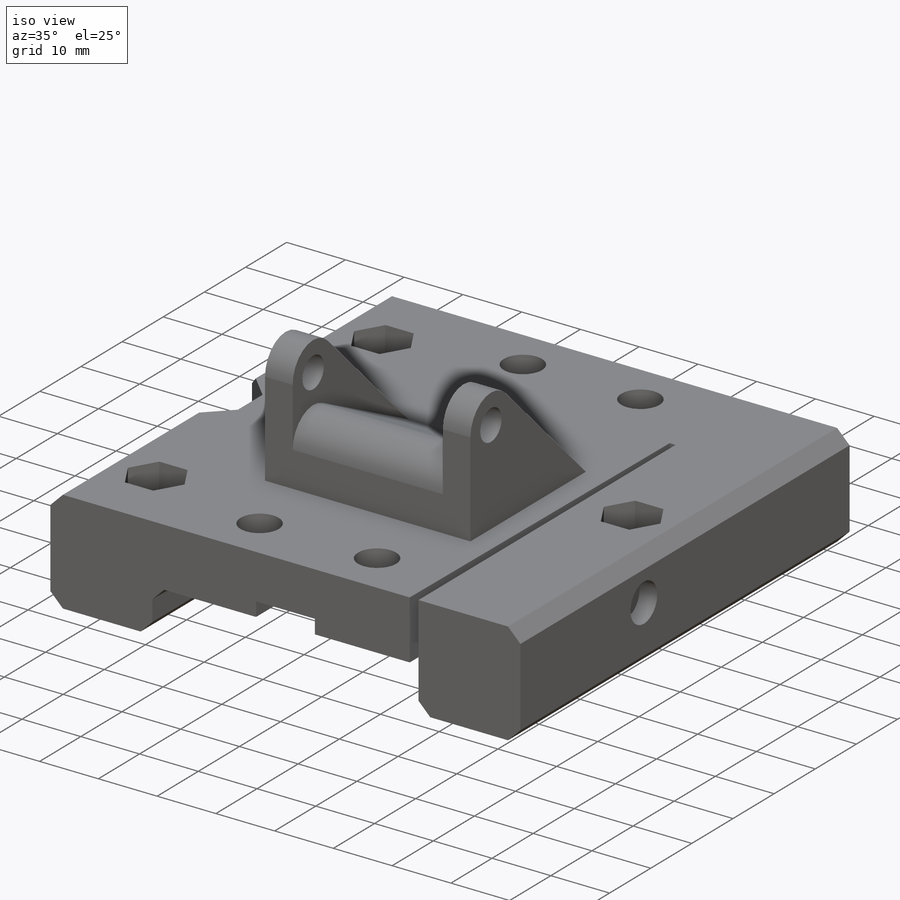
[diagram: iso view]
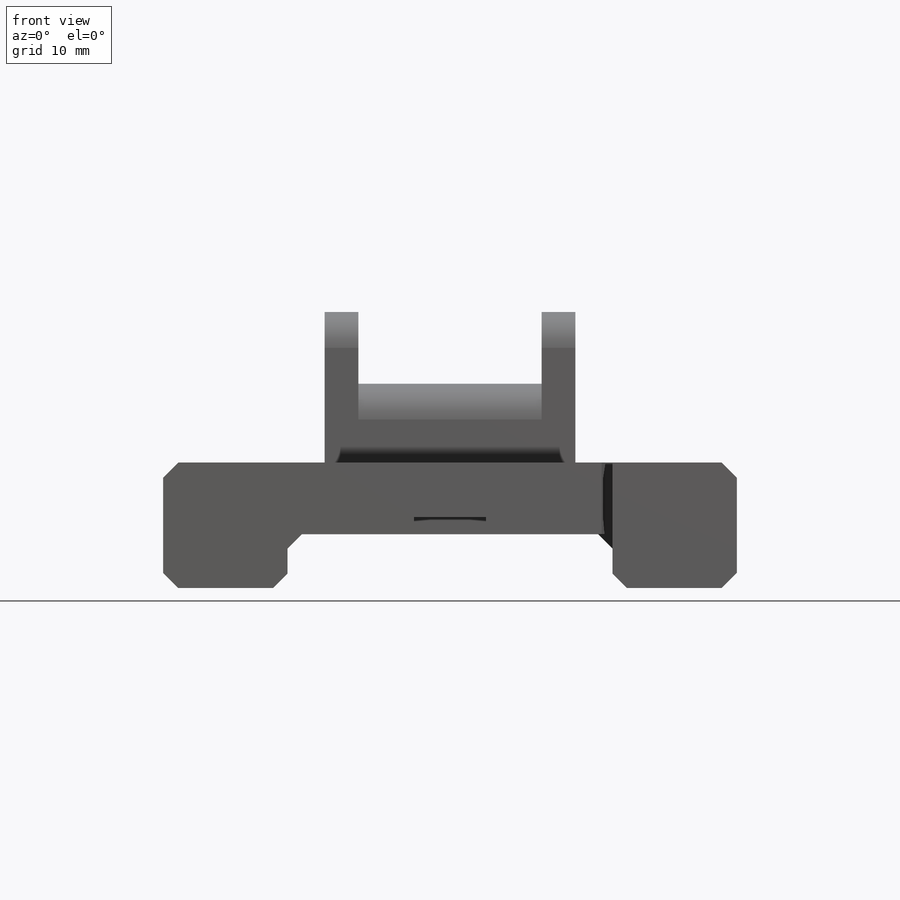
[diagram: front view]
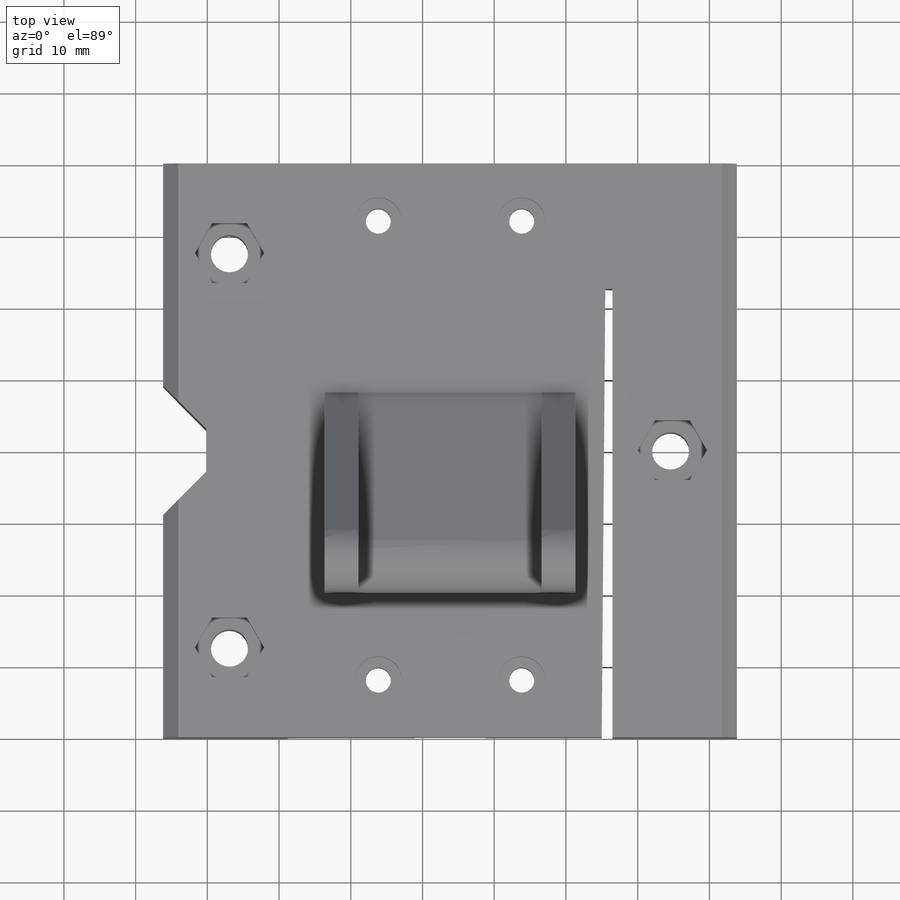
[diagram: top view]
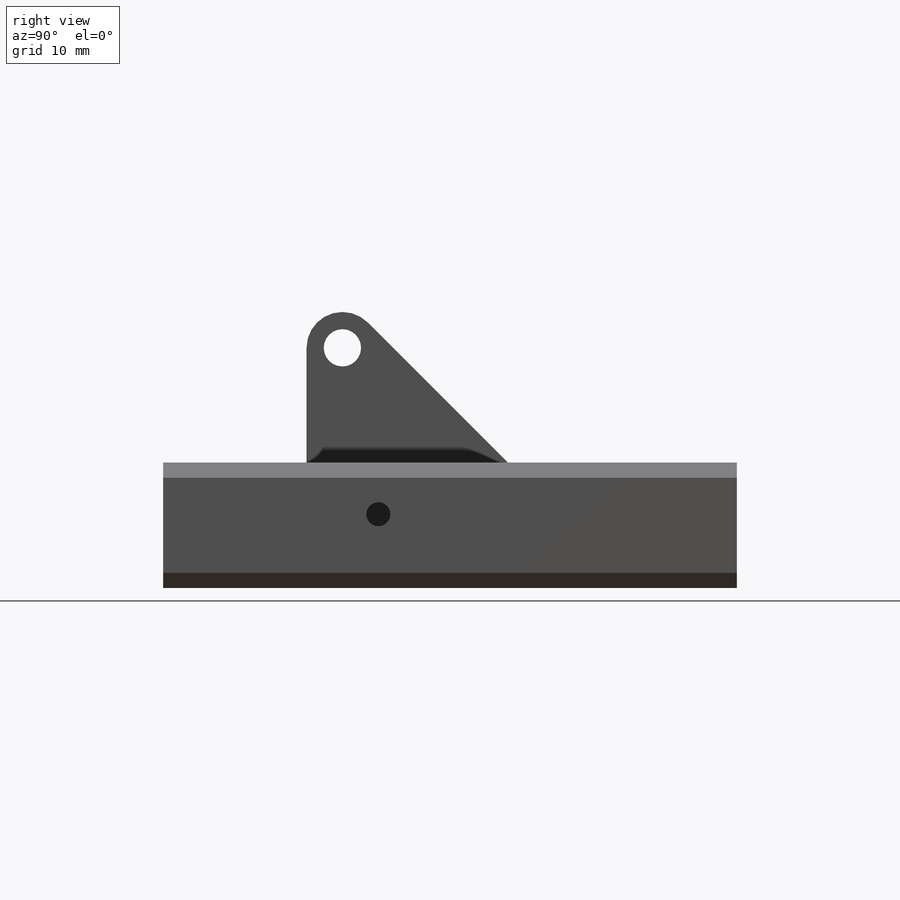
[diagram: right view]
SOLIDWORKS PART (.sldprt)
format: sldprt  version: not decoded by parser v0  size: 979,456 bytes
history: native  units: mm
features: sketch x16, cut_extrude x12, extrude x4, chamfer x2, material x1 (+16 scaffold rows collapsed)
feature tree (51):
  scaffold x16  (default folders/planes/origin — collapsed)
  material  "Material <not specified>"
  sketch  "Sketch1"  dims[c1.D1=17.3515mm c1.D3=2.0mm c1.D4=2.0mm c1.D5=2.0mm c2.D1=17.5mm c2.D6=2.0mm c2.D2=17.5mm]
  extrude  "Boss-Extrude1"  Depth=80mm
  sketch  "Sketch2"  dims[c1.D1=5.2mm c1.D2=5.2mm c1.D4=5.2mm c2.D2=30.75mm c2.D3=31.324mm c3.D3=30.75mm]
  cut_extrude  "Cut-Extrude1"  [1 undecoded]
  sketch  "Sketch3"  dims[c1.D1=1.0mm c1.D2=25.0mm c2.D1=62.5mm c2.D2=1.0mm c3.D1=1.0mm c3.D2=~0.999936mm c4.D1=1.5mm c4.D2=1.0mm c4.D3=0.5mm c5.D2=0.5mm]
  sketch  "Sketch5"  dims[c1.D1=6.5mm c1.D2=5.0mm c1.D3=7.231mm c2.D2=30.0mm c2.D3=5.114mm]
  sketch  "Sketch7"  dims[c1.D1=5.75mm c1.D2=1.9mm c1.D3=5.0mm c1.D4=4.0mm c2.D3=30.0mm c2.D4=22.3515mm c2.D5=22.352mm]
  cut_extrude  "Cut-Extrude5"  Depth=5.75mm
  sketch  "Sketch9"  dims[c1.D1=12.0mm c1.D2=10.0mm c2.D1=20.0mm]
  cut_extrude  "Cut-Extrude6"  Depth=2.4mm
  sketch  "Sketch11"  dims[c1.D1=3.5mm c1.D2=6.0mm c1.D3=10.0mm c1.D4=~10.995318mm c1.D5=6.0mm c1.D6=6.0mm c2.D5=6.0mm c2.D6=14.6485mm c2.D2=8.0mm c2.D3=~7.982222deg]
  cut_extrude  "Cut-Extrude7"  [1 undecoded]
  sketch  "Sketch13"  dims[D1=6.5mm]
  cut_extrude  "Cut-Extrude8"  Depth=3mm
  sketch  "Sketch15"  dims[c1.D2=10.0mm c1.D3=5.2mm c1.D1=5.0mm c2.D2=10.0mm c2.D1=60.0mm c2.D3=135.0deg c3.D1=60.0mm c3.D4=15.99mm c3.D5=~30.520968mm c4.D5=45.0deg c4.D1=25.0mm c5.D5=~27.613275mm c6.D5=45.0deg c6.D1=18.4499mm]
  extrude  "Boss-Extrude7"  [1 undecoded]
  sketch  "Sketch19"  dims[D1=8.35mm]
  cut_extrude  "Cut-Extrude12"  Depth=5mm
  sketch  "Sketch16"  dims[c1.D2=4.7mm c1.D3=25.561mm c1.D1=16.1511mm c2.D2=16.1511mm]
  cut_extrude  "Cut-Extrude22"  Depth=3mm
  sketch  "Sketch30"  dims[c1.D1=3.35mm c1.D3=5.85mm c1.D2=5.114mm c2.D3=5.0mm]
  cut_extrude  "Cut-Extrude23"  Depth=25mm
  sketch  "Sketch31"  dims[c1.D1=~2.750002mm c2.D1=45.0deg c3.D1=~2.750002mm c4.D1=45.0deg c5.D1=2.0mm]
  cut_extrude  "Cut-Extrude34"  [1 undecoded]
  extrude  "Boss-Extrude5"  Depth=17.5mm
  cut_extrude  "Cut-Extrude35"  [1 undecoded]
  sketch  "Sketch38"  dims[D1=3.0mm D2=3.0mm]
  cut_extrude  "Cut-Extrude36"  Depth=6mm
  chamfer  "Chamfer1"  Distance=6mm Angle=45deg
  chamfer  "Chamfer2"  Distance=6mm Angle=45deg
  sketch  "Sketch37"  dims[c1.D3=3.2mm c1.D1=3.0mm c1.D2=10.2693mm c2.D1=3.0mm]
  cut_extrude  "Cut-Extrude29"  Depth=25mm
  sketch  "Sketch39"  dims[D2=~7.193816mm D1=5.0mm]
  extrude  "Boss-Extrude8"  Depth=2mm
decode coverage: 29 of 34 modeling features carry decoded parameters
note: ~ marks probable driven/reference dimensions
note: 5 parameter values undecoded
summary: no parameter record found for 5 features
note: suppression state not decoded; provenance and decode notes live in map.json
